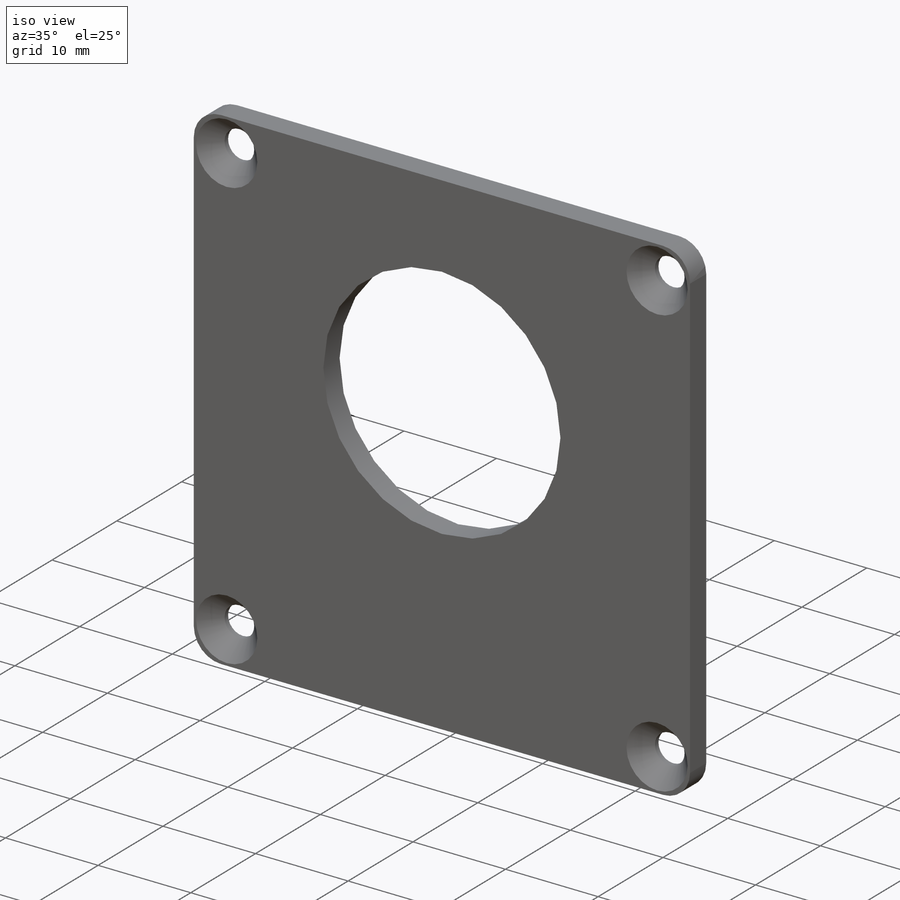
[diagram: iso view]
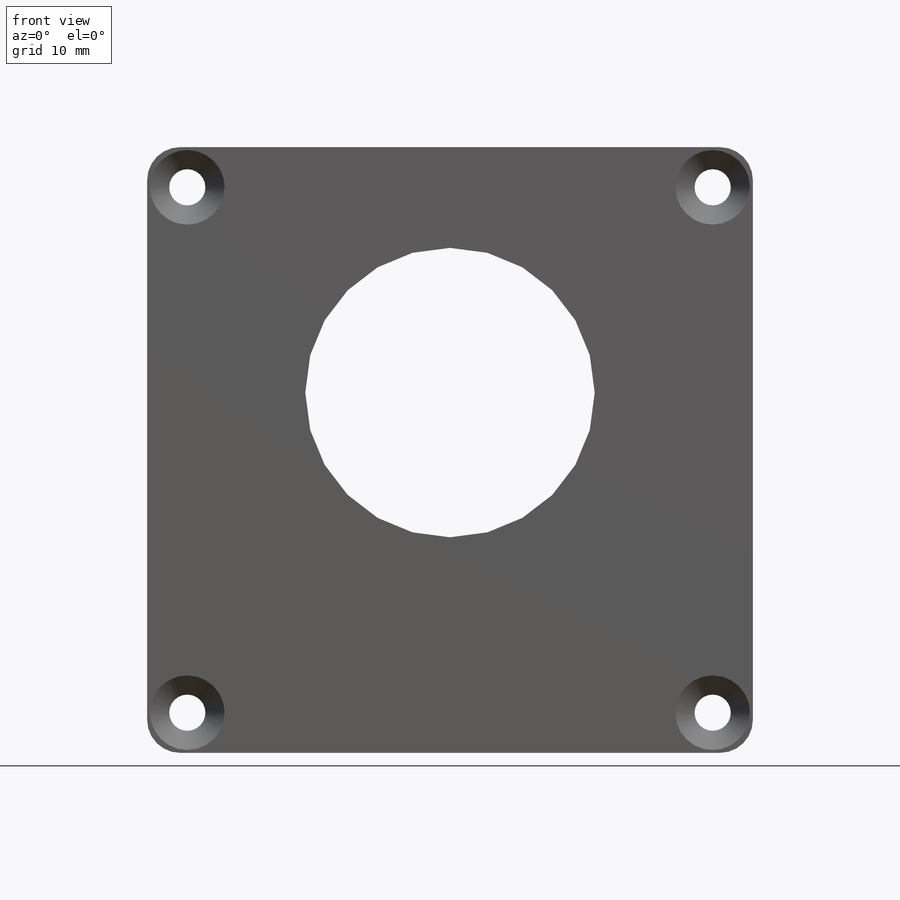
[diagram: front view]
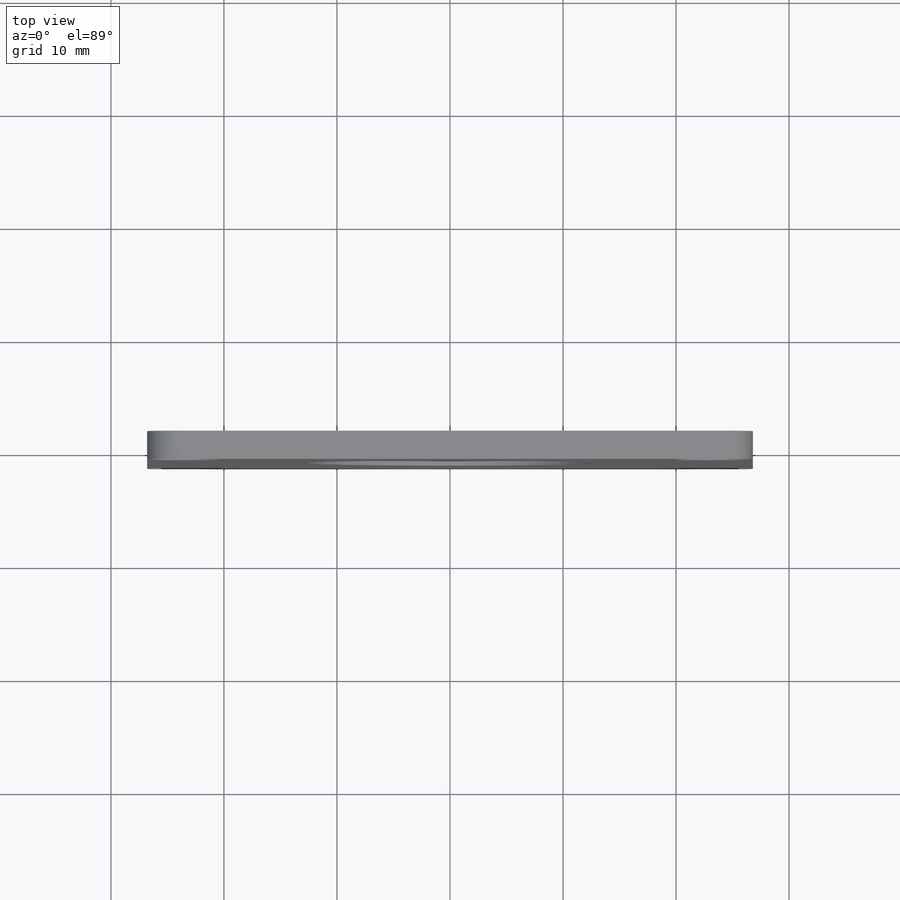
[diagram: top view]
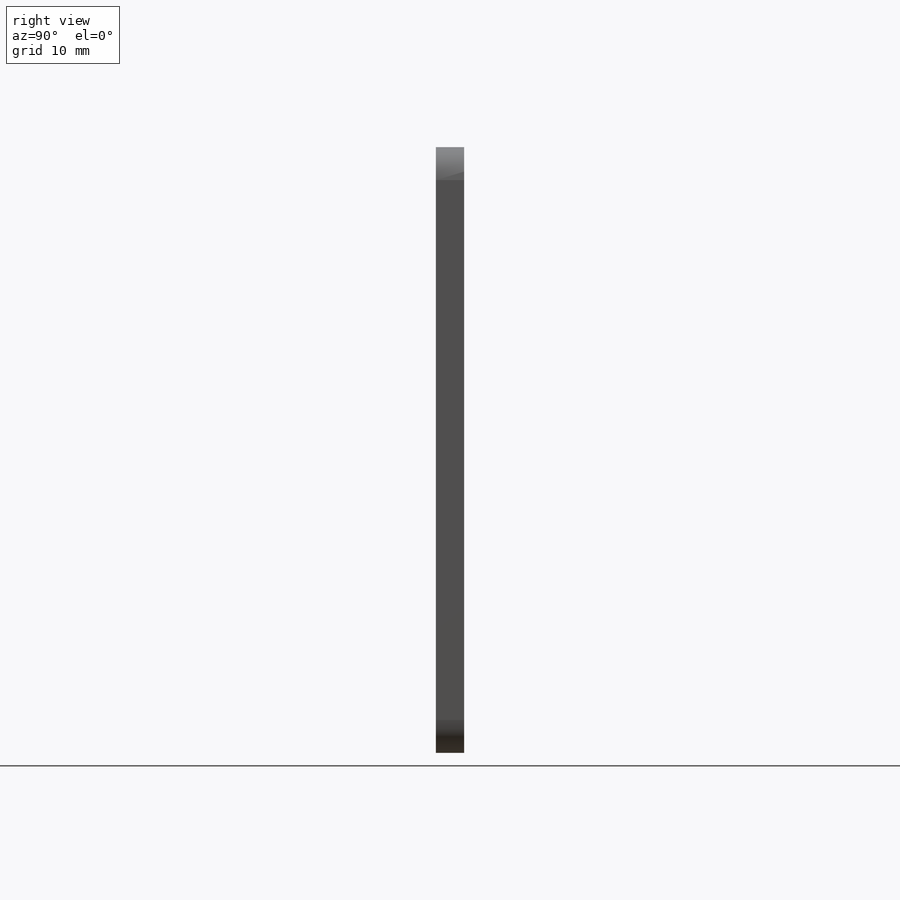
[diagram: right view]
SOLIDWORKS PART (.sldprt)
format: sldprt  version: not decoded by parser v0  size: 405,504 bytes
history: native  units: mm
features: sketch x4, material x1, extrude x1, hole x1, cut_extrude x1 + 1 further entry (+11 scaffold rows collapsed)
feature tree (20):
  scaffold x11  (default folders/planes/origin — collapsed)
  material  "6061-T6 Al"
  "Origin"  ID=392984584
  sketch  "Sketch1"  dims[c1.D1=~108.514766mm c1.D2=48.26mm c1.D3=35.56mm c2.D2=43.18mm c2.D3=52.324mm c3.D2=53.594mm]
  extrude  "Boss-Extrude1"  Depth=2.5mm
  hole  "CSK for #4 Flat Head Machine Screw1"  Diameter=3.2004mm Depth=2.5mm
  sketch  "Sketch6"  dims[c1.D1=33.02mm c1.D2=45.212mm c2.D1=46.482mm]
  sketch  "Sketch5"  dims[hole-wizard template sketch: 54 standard entries collapsed; hole parameters kept: c17.Thru Hole Dia.=3.2004mm c17.Thru Hole Depth=2.5mm c17.Near C'Sink Dia.=6.604mm c17.D4=~3.666174mm c17.Near C'Sink Angle=82.0deg]
  sketch  "Sketch7"  dims[c1.D1=25.6032mm c1.D2=5.08mm c1.D3=5.08mm c1.D4=31.877mm c2.D2=31.877mm c2.D3=33.02mm c2.D4=~13.622447mm c2.D5=~21.404466mm c3.D4=19.2532mm]
  cut_extrude  "Cut-Extrude1"  [1 undecoded]
decode coverage: 6 of 7 modeling features carry decoded parameters; 1 rows unclassified (native names shown)
note: ~ marks probable driven/reference dimensions
note: 1 parameter value undecoded
note: suppression state not decoded; provenance and decode notes live in map.json
